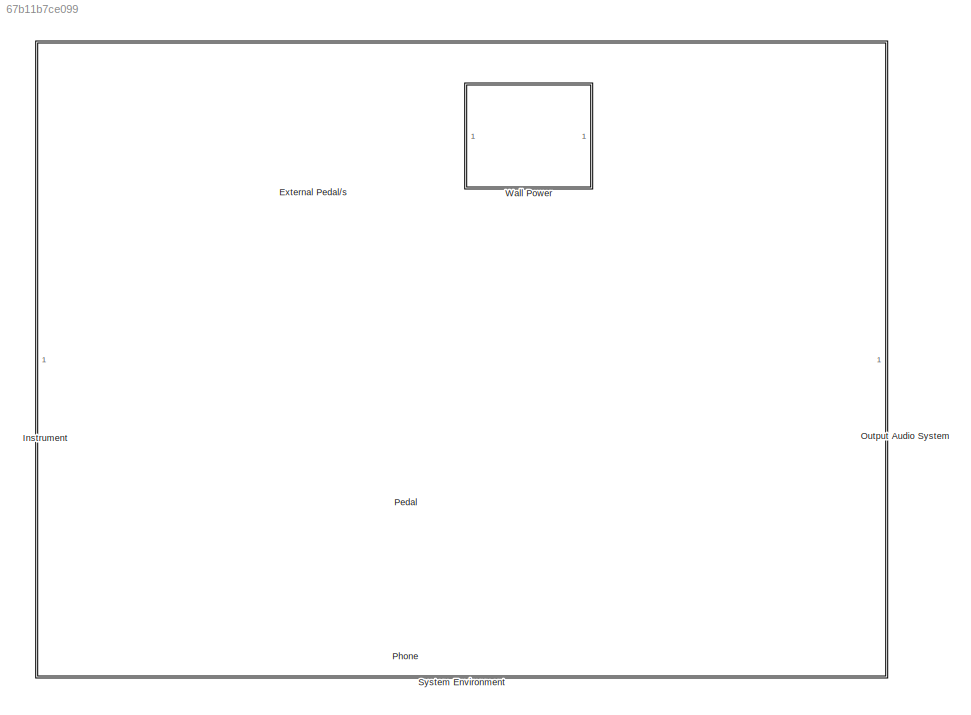
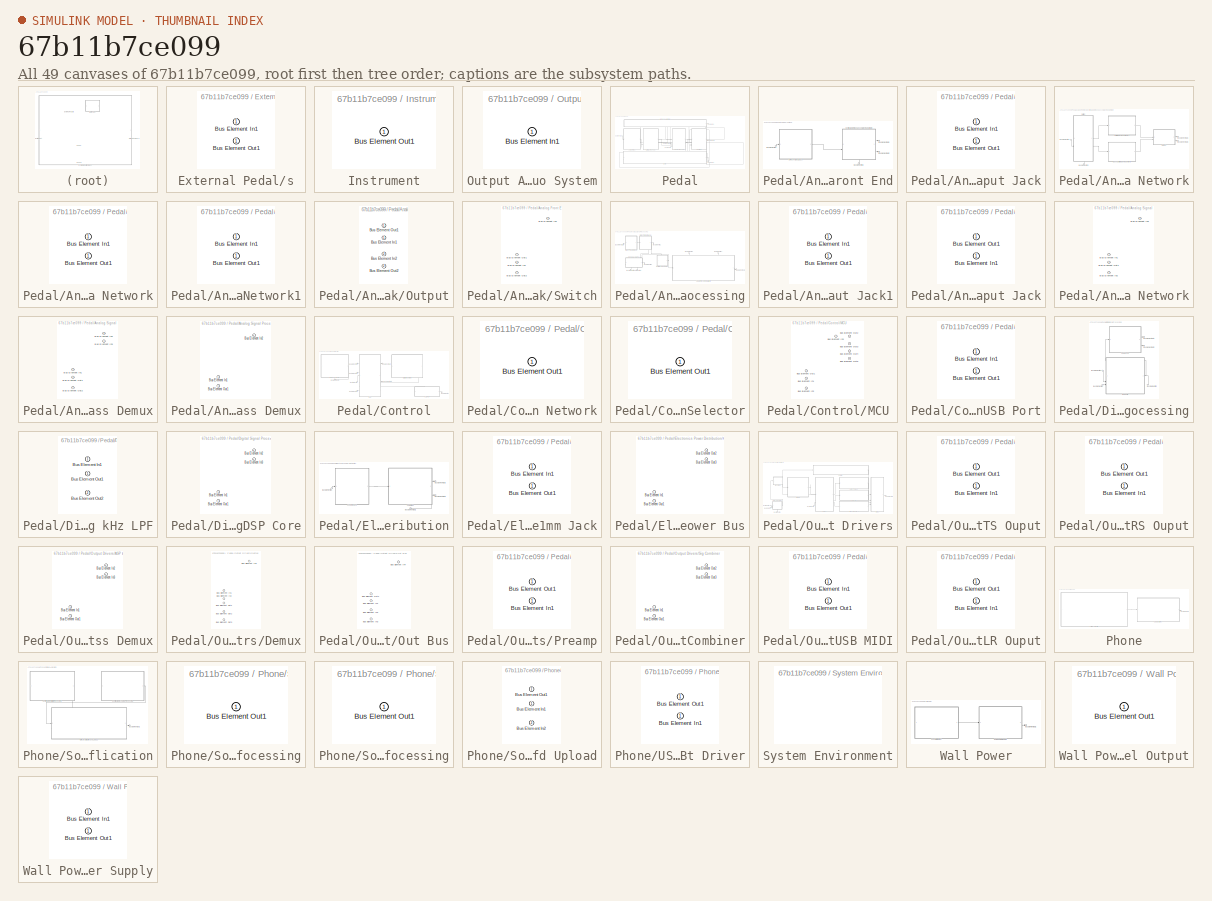
[diagram: thumbnail index - all 49 canvases of the model, root first then tree order]
MODEL slx_67b11b7ce099
KIND model
CONFIG AbsTol = auto
CONFIG EnableMultiTasking = off
CONFIG FixedStep = auto
CONFIG MaxStep = auto
CONFIG MinStep = auto
CONFIG RelTol = 1e-3
CONFIG SampleTimeConstraint = Unconstrained
CONFIG SolverName = VariableStepAuto
CONFIG StartTime = 0.0
CONFIG StopTime = 10.0
BLOCK [SubSystem] External Pedal//s
  PortSchema = {"entries":[{"content":{"headerSize":26,"margin":15,"minimumSpacing":25,"sides":[{"content":{"connectorIds":["Out1"]},"type":"ConnectorPlacement.EquallySpacedRectSide","uuid":"d45e420a-c48a-4f64-96ce-c5c35bb4ca1a"},{"content":{"connectorIds":["In1"],"side":"RIGHT"},"type":"ConnectorPlacement.EquallySpacedRectSide","uuid":"a4e2bce0-d957-4e8d-907b-26e945724fec"},{"content":{"side":"TOP"},"type":"Con...<+396ch>
BLOCK [Inport] External Pedal//s/Bus Element In1
BLOCK [Outport] External Pedal//s/Bus Element Out1
BLOCK [SubSystem] Instrument
  PortSchema = {"entries":[{"content":{"headerSize":26,"margin":15,"minimumSpacing":25,"sides":[{"content":{},"type":"ConnectorPlacement.EquallySpacedRectSide","uuid":"d45e420a-c48a-4f64-96ce-c5c35bb4ca1a"},{"content":{"connectorIds":["Out1"],"side":"RIGHT"},"type":"ConnectorPlacement.EquallySpacedRectSide","uuid":"a4e2bce0-d957-4e8d-907b-26e945724fec"},{"content":{"side":"TOP"},"type":"ConnectorPlacement.Equall...<+248ch>  <repeated x5 — deduplicated; at blocks: Instrument, Phone, Software Application, Configurable Analog Processing, 120V Wall Output>
BLOCK [Outport] Instrument/Bus Element Out1
BLOCK [SubSystem] Output Audio System
  PortSchema = {"entries":[{"content":{"headerSize":26,"margin":15,"minimumSpacing":25,"sides":[{"content":{"connectorIds":["In1"]},"type":"ConnectorPlacement.EquallySpacedRectSide","uuid":"d45e420a-c48a-4f64-96ce-c5c35bb4ca1a"},{"content":{"side":"RIGHT"},"type":"ConnectorPlacement.EquallySpacedRectSide","uuid":"a4e2bce0-d957-4e8d-907b-26e945724fec"},{"content":{"side":"TOP"},"type":"ConnectorPlacement.EquallyS...<+246ch>
BLOCK [Inport] Output Audio System/Bus Element In1
BLOCK [SubSystem] Pedal
  PortSchema = {"entries":[{"content":{"headerSize":26,"margin":15,"minimumSpacing":25,"sides":[{"content":{"connectorIds":["In3","Out2","In4"]},"type":"ConnectorPlacement.EquallySpacedRectSide","uuid":"d45e420a-c48a-4f64-96ce-c5c35bb4ca1a"},{"content":{"connectorIds":["In1","Out1","In2"],"side":"RIGHT"},"type":"ConnectorPlacement.EquallySpacedRectSide","uuid":"a4e2bce0-d957-4e8d-907b-26e945724fec"},{"content":{...<+295ch>
BLOCK [SubSystem] Pedal/Analog Front End
  PortSchema = {"entries":[{"content":{"headerSize":26,"margin":15,"minimumSpacing":25,"sides":[{"content":{"connectorIds":["In1","In2"]},"type":"ConnectorPlacement.EquallySpacedRectSide","uuid":"d45e420a-c48a-4f64-96ce-c5c35bb4ca1a"},{"content":{"connectorIds":["Out1","Out2"],"side":"RIGHT"},"type":"ConnectorPlacement.EquallySpacedRectSide","uuid":"a4e2bce0-d957-4e8d-907b-26e945724fec"},{"content":{"side":"TOP"...<+283ch>
BLOCK [SubSystem] Pedal/Analog Front End/1//4 Inch TS Input Jack
  PortSchema = {"entries":[{"content":{"headerSize":26,"margin":15,"minimumSpacing":25,"sides":[{"content":{"connectorIds":["In1"]},"type":"ConnectorPlacement.EquallySpacedRectSide","uuid":"d45e420a-c48a-4f64-96ce-c5c35bb4ca1a"},{"content":{"connectorIds":["Out1"],"side":"RIGHT"},"type":"ConnectorPlacement.EquallySpacedRectSide","uuid":"a4e2bce0-d957-4e8d-907b-26e945724fec"},{"content":{"side":"TOP"},"type":"Con...<+270ch>  <repeated x11 — deduplicated; at blocks: 1/4 Inch TS Input Jack, Bass Guitar Matching Network, Guitar Matching Network1, 9V 2.1mm Jack, 1/4 Inch TS Ouput, 1/8 Inch TRS Ouput, Preamp, USB MIDI, XLR Ouput, USB Output Driver, 9V DC Power Supply>
BLOCK [Inport] Pedal/Analog Front End/1//4 Inch TS Input Jack/Bus Element In1
BLOCK [Outport] Pedal/Analog Front End/1//4 Inch TS Input Jack/Bus Element Out1
BLOCK [Inport] Pedal/Analog Front End/Bus Element In1
BLOCK [Inport] Pedal/Analog Front End/Bus Element In2
  Port = 2
BLOCK [Outport] Pedal/Analog Front End/Bus Element Out1
BLOCK [Outport] Pedal/Analog Front End/Bus Element Out2
  Port = 2
BLOCK [SubSystem] Pedal/Analog Front End/Configurable Impedance Matching Network
  PortSchema = {"entries":[{"content":{"headerSize":26,"margin":15,"minimumSpacing":25,"sides":[{"content":{"connectorIds":["In2"]},"type":"ConnectorPlacement.EquallySpacedRectSide","uuid":"d45e420a-c48a-4f64-96ce-c5c35bb4ca1a"},{"content":{"connectorIds":["Out1","Out2"],"side":"RIGHT"},"type":"ConnectorPlacement.EquallySpacedRectSide","uuid":"a4e2bce0-d957-4e8d-907b-26e945724fec"},{"content":{"side":"TOP"},"typ...<+426ch>
BLOCK [SubSystem] Pedal/Analog Front End/Configurable Impedance Matching Network/Bass Guitar Matching Network
BLOCK [Inport] Pedal/Analog Front End/Configurable Impedance Matching Network/Bass Guitar Matching Network/Bus Element In1
BLOCK [Outport] Pedal/Analog Front End/Configurable Impedance Matching Network/Bass Guitar Matching Network/Bus Element Out1
BLOCK [Inport] Pedal/Analog Front End/Configurable Impedance Matching Network/Bus Element In1
  Port = 2
BLOCK [Inport] Pedal/Analog Front End/Configurable Impedance Matching Network/Bus Element In2
BLOCK [Outport] Pedal/Analog Front End/Configurable Impedance Matching Network/Bus Element Out1
BLOCK [Outport] Pedal/Analog Front End/Configurable Impedance Matching Network/Bus Element Out2
  Port = 2
BLOCK [SubSystem] Pedal/Analog Front End/Configurable Impedance Matching Network/Guitar Matching Network1
BLOCK [Inport] Pedal/Analog Front End/Configurable Impedance Matching Network/Guitar Matching Network1/Bus Element In1
BLOCK [Outport] Pedal/Analog Front End/Configurable Impedance Matching Network/Guitar Matching Network1/Bus Element Out1
BLOCK [SubSystem] Pedal/Analog Front End/Configurable Impedance Matching Network/Output
  PortSchema = {"entries":[{"content":{"headerSize":26,"margin":15,"minimumSpacing":25,"sides":[{"content":{"connectorIds":["In1","In2"]},"type":"ConnectorPlacement.EquallySpacedRectSide","uuid":"d45e420a-c48a-4f64-96ce-c5c35bb4ca1a"},{"content":{"connectorIds":["Out1","Out2"],"side":"RIGHT"},"type":"ConnectorPlacement.EquallySpacedRectSide","uuid":"a4e2bce0-d957-4e8d-907b-26e945724fec"},{"content":{"side":"TOP"...<+283ch>
BLOCK [Inport] Pedal/Analog Front End/Configurable Impedance Matching Network/Output/Bus Element In1
BLOCK [Inport] Pedal/Analog Front End/Configurable Impedance Matching Network/Output/Bus Element In2
  Port = 2
BLOCK [Outport] Pedal/Analog Front End/Configurable Impedance Matching Network/Output/Bus Element Out1
BLOCK [Outport] Pedal/Analog Front End/Configurable Impedance Matching Network/Output/Bus Element Out2
  Port = 2
BLOCK [SubSystem] Pedal/Analog Front End/Configurable Impedance Matching Network/Switch
  PortSchema = {"entries":[{"content":{"headerSize":26,"margin":15,"minimumSpacing":25,"sides":[{"content":{"connectorIds":["In2"]},"type":"ConnectorPlacement.EquallySpacedRectSide","uuid":"d45e420a-c48a-4f64-96ce-c5c35bb4ca1a"},{"content":{"connectorIds":["Out1","Out2"],"side":"RIGHT"},"type":"ConnectorPlacement.EquallySpacedRectSide","uuid":"a4e2bce0-d957-4e8d-907b-26e945724fec"},{"content":{"side":"TOP"},"typ...<+426ch>
BLOCK [Inport] Pedal/Analog Front End/Configurable Impedance Matching Network/Switch/Bus Element In1
  Port = 2
BLOCK [Inport] Pedal/Analog Front End/Configurable Impedance Matching Network/Switch/Bus Element In2
BLOCK [Outport] Pedal/Analog Front End/Configurable Impedance Matching Network/Switch/Bus Element Out1
BLOCK [Outport] Pedal/Analog Front End/Configurable Impedance Matching Network/Switch/Bus Element Out2
  Port = 2
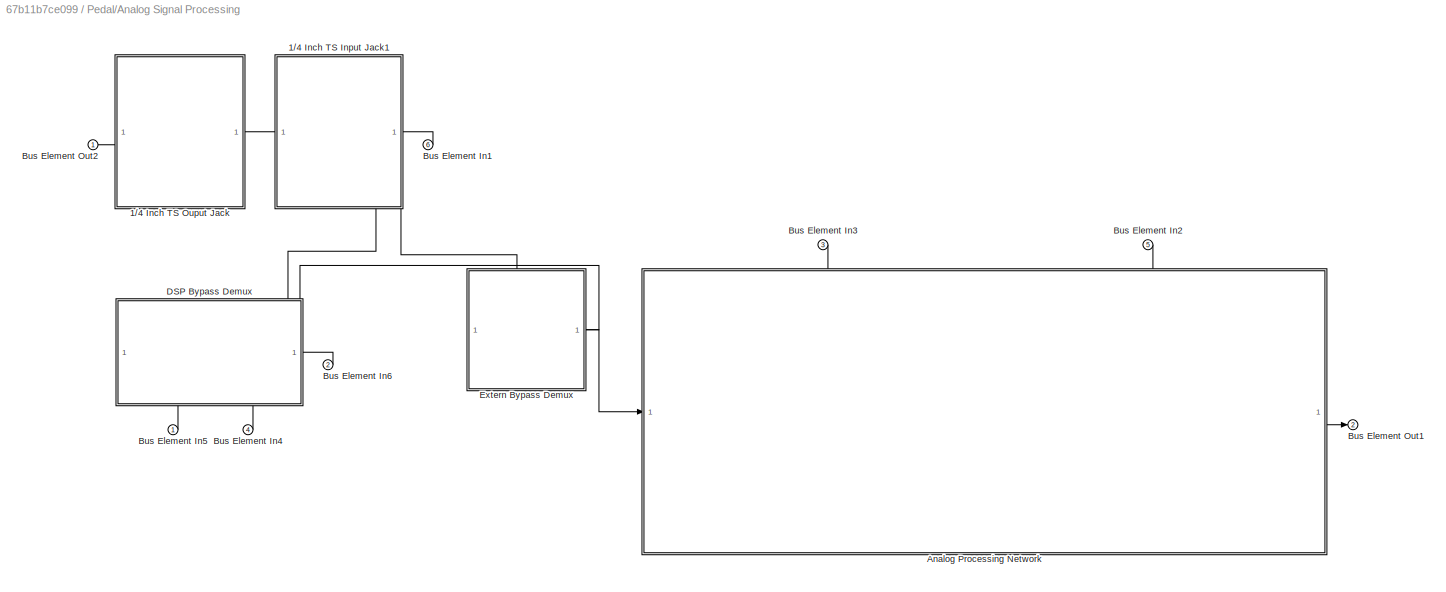
BLOCK [SubSystem] Pedal/Analog Signal Processing
  PortSchema = {"entries":[{"content":{"headerSize":26,"margin":15,"minimumSpacing":25,"sides":[{"content":{"connectorIds":["In1","In3","In4","Out1","In6"]},"type":"ConnectorPlacement.EquallySpacedRectSide","uuid":"d45e420a-c48a-4f64-96ce-c5c35bb4ca1a"},{"content":{"connectorIds":["Out2","In5","In2"],"side":"RIGHT"},"type":"ConnectorPlacement.EquallySpacedRectSide","uuid":"a4e2bce0-d957-4e8d-907b-26e945724fec"},...<+307ch>
BLOCK [SubSystem] Pedal/Analog Signal Processing/1//4 Inch TS Input Jack1
  PortSchema = {"entries":[{"content":{"headerSize":26,"margin":15,"minimumSpacing":25,"sides":[{"content":{},"type":"ConnectorPlacement.EquallySpacedRectSide","uuid":"d45e420a-c48a-4f64-96ce-c5c35bb4ca1a"},{"content":{"connectorIds":["In1"],"side":"RIGHT"},"type":"ConnectorPlacement.EquallySpacedRectSide","uuid":"a4e2bce0-d957-4e8d-907b-26e945724fec"},{"content":{"side":"TOP"},"type":"ConnectorPlacement.Equally...<+397ch>
BLOCK [Inport] Pedal/Analog Signal Processing/1//4 Inch TS Input Jack1/Bus Element In1
BLOCK [Outport] Pedal/Analog Signal Processing/1//4 Inch TS Input Jack1/Bus Element Out1
BLOCK [SubSystem] Pedal/Analog Signal Processing/1//4 Inch TS Ouput Jack
  PortSchema = {"entries":[{"content":{"headerSize":26,"margin":15,"minimumSpacing":25,"sides":[{"content":{"connectorIds":["Out1"]},"type":"ConnectorPlacement.EquallySpacedRectSide","uuid":"d45e420a-c48a-4f64-96ce-c5c35bb4ca1a"},{"content":{"side":"RIGHT"},"type":"ConnectorPlacement.EquallySpacedRectSide","uuid":"a4e2bce0-d957-4e8d-907b-26e945724fec"},{"content":{"side":"TOP"},"type":"ConnectorPlacement.Equally...<+396ch>
BLOCK [Inport] Pedal/Analog Signal Processing/1//4 Inch TS Ouput Jack/Bus Element In1
BLOCK [Outport] Pedal/Analog Signal Processing/1//4 Inch TS Ouput Jack/Bus Element Out1
BLOCK [SubSystem] Pedal/Analog Signal Processing/Analog Processing Network
  PortSchema = {"entries":[{"content":{"headerSize":26,"margin":15,"minimumSpacing":25,"sides":[{"content":{"connectorIds":["In1"]},"type":"ConnectorPlacement.EquallySpacedRectSide","uuid":"d45e420a-c48a-4f64-96ce-c5c35bb4ca1a"},{"content":{"connectorIds":["Out1"],"side":"RIGHT"},"type":"ConnectorPlacement.EquallySpacedRectSide","uuid":"a4e2bce0-d957-4e8d-907b-26e945724fec"},{"content":{"connectorIds":["In2","In...<+299ch>
BLOCK [Inport] Pedal/Analog Signal Processing/Analog Processing Network/Bus Element In1
  Port = 2
BLOCK [Inport] Pedal/Analog Signal Processing/Analog Processing Network/Bus Element In2
  Port = 3
BLOCK [Inport] Pedal/Analog Signal Processing/Analog Processing Network/Bus Element In3
BLOCK [Outport] Pedal/Analog Signal Processing/Analog Processing Network/Bus Element Out1
BLOCK [Inport] Pedal/Analog Signal Processing/Bus Element In1
  Port = 6
BLOCK [Inport] Pedal/Analog Signal Processing/Bus Element In2
  Port = 5
BLOCK [Inport] Pedal/Analog Signal Processing/Bus Element In3
  Port = 3
BLOCK [Inport] Pedal/Analog Signal Processing/Bus Element In4
  Port = 4
BLOCK [Inport] Pedal/Analog Signal Processing/Bus Element In5
BLOCK [Inport] Pedal/Analog Signal Processing/Bus Element In6
  Port = 2
BLOCK [Outport] Pedal/Analog Signal Processing/Bus Element Out1
  Port = 2
BLOCK [Outport] Pedal/Analog Signal Processing/Bus Element Out2
BLOCK [SubSystem] Pedal/Analog Signal Processing/DSP Bypass Demux
  PortSchema = {"entries":[{"content":{"headerSize":26,"margin":15,"minimumSpacing":25,"sides":[{"content":{"connectorIds":["Out1","Out2"]},"type":"ConnectorPlacement.EquallySpacedRectSide","uuid":"d45e420a-c48a-4f64-96ce-c5c35bb4ca1a"},{"content":{"connectorIds":["In1"],"side":"RIGHT"},"type":"ConnectorPlacement.EquallySpacedRectSide","uuid":"a4e2bce0-d957-4e8d-907b-26e945724fec"},{"content":{"side":"TOP"},"typ...<+432ch>
BLOCK [Inport] Pedal/Analog Signal Processing/DSP Bypass Demux/Bus Element In1
  Port = 3
BLOCK [Inport] Pedal/Analog Signal Processing/DSP Bypass Demux/Bus Element In2
  Port = 2
BLOCK [Inport] Pedal/Analog Signal Processing/DSP Bypass Demux/Bus Element In3
BLOCK [Outport] Pedal/Analog Signal Processing/DSP Bypass Demux/Bus Element Out1
BLOCK [Outport] Pedal/Analog Signal Processing/DSP Bypass Demux/Bus Element Out2
  Port = 2
BLOCK [SubSystem] Pedal/Analog Signal Processing/Extern Bypass Demux
  PortSchema = {"entries":[{"content":{"headerSize":26,"margin":15,"minimumSpacing":25,"sides":[{"content":{"connectorIds":["In1","In2"]},"type":"ConnectorPlacement.EquallySpacedRectSide","uuid":"d45e420a-c48a-4f64-96ce-c5c35bb4ca1a"},{"content":{"connectorIds":["Out1"],"side":"RIGHT"},"type":"ConnectorPlacement.EquallySpacedRectSide","uuid":"a4e2bce0-d957-4e8d-907b-26e945724fec"},{"content":{"side":"TOP"},"type...<+276ch>
BLOCK [Inport] Pedal/Analog Signal Processing/Extern Bypass Demux/Bus Element In1
  Port = 2
BLOCK [Inport] Pedal/Analog Signal Processing/Extern Bypass Demux/Bus Element In2
BLOCK [Outport] Pedal/Analog Signal Processing/Extern Bypass Demux/Bus Element Out1
BLOCK [Inport] Pedal/Bus Element In1
  Port = 4
BLOCK [Inport] Pedal/Bus Element In2
  Port = 3
BLOCK [Inport] Pedal/Bus Element In3
BLOCK [Inport] Pedal/Bus Element In4
  Port = 2
BLOCK [Outport] Pedal/Bus Element Out1
  Port = 2
BLOCK [Outport] Pedal/Bus Element Out2
BLOCK [SubSystem] Pedal/Control
  PortSchema = {"entries":[{"content":{"headerSize":26,"margin":15,"minimumSpacing":25,"sides":[{"content":{"connectorIds":["Out4","Out5"]},"type":"ConnectorPlacement.EquallySpacedRectSide","uuid":"d45e420a-c48a-4f64-96ce-c5c35bb4ca1a"},{"content":{"connectorIds":["Out1","Out2","Out3","Out6","In1"],"side":"RIGHT"},"type":"ConnectorPlacement.EquallySpacedRectSide","uuid":"a4e2bce0-d957-4e8d-907b-26e945724fec"},{"...<+328ch>
BLOCK [Inport] Pedal/Control/Bus Element In1
  Port = 2
BLOCK [Inport] Pedal/Control/Bus Element In2
BLOCK [Outport] Pedal/Control/Bus Element Out1
  Port = 6
BLOCK [Outport] Pedal/Control/Bus Element Out2
  Port = 4
BLOCK [Outport] Pedal/Control/Bus Element Out3
  Port = 5
BLOCK [Outport] Pedal/Control/Bus Element Out4
  Port = 3
BLOCK [Outport] Pedal/Control/Bus Element Out5
  Port = 2
BLOCK [Outport] Pedal/Control/Bus Element Out6
BLOCK [SubSystem] Pedal/Control/Dial//Switch Network
  PortSchema = {"entries":[{"content":{"headerSize":26,"margin":15,"minimumSpacing":25,"sides":[{"content":{"connectorIds":["Out1"]},"type":"ConnectorPlacement.EquallySpacedRectSide","uuid":"d45e420a-c48a-4f64-96ce-c5c35bb4ca1a"},{"content":{"side":"RIGHT"},"type":"ConnectorPlacement.EquallySpacedRectSide","uuid":"a4e2bce0-d957-4e8d-907b-26e945724fec"},{"content":{"side":"TOP"},"type":"ConnectorPlacement.Equally...<+247ch>
BLOCK [Outport] Pedal/Control/Dial//Switch Network/Bus Element Out1
BLOCK [SubSystem] Pedal/Control/Input Type Selector
  PortSchema = {"entries":[{"content":{"headerSize":26,"margin":15,"minimumSpacing":25,"sides":[{"content":{},"type":"ConnectorPlacement.EquallySpacedRectSide","uuid":"d45e420a-c48a-4f64-96ce-c5c35bb4ca1a"},{"content":{"side":"RIGHT"},"type":"ConnectorPlacement.EquallySpacedRectSide","uuid":"a4e2bce0-d957-4e8d-907b-26e945724fec"},{"content":{"side":"TOP"},"type":"ConnectorPlacement.EquallySpacedRectSide","uuid":...<+374ch>
BLOCK [Outport] Pedal/Control/Input Type Selector/Bus Element Out1
BLOCK [SubSystem] Pedal/Control/MCU
  PortSchema = {"entries":[{"content":{"headerSize":26,"margin":15,"minimumSpacing":25,"sides":[{"content":{"connectorIds":["Out2","Out3","In1","Out5"]},"type":"ConnectorPlacement.EquallySpacedRectSide","uuid":"d45e420a-c48a-4f64-96ce-c5c35bb4ca1a"},{"content":{"connectorIds":["Out1","In2","Out4","In3"],"side":"RIGHT"},"type":"ConnectorPlacement.EquallySpacedRectSide","uuid":"a4e2bce0-d957-4e8d-907b-26e945724fec...<+310ch>
BLOCK [Inport] Pedal/Control/MCU/Bus Element In1
  Port = 2
BLOCK [Inport] Pedal/Control/MCU/Bus Element In2
  Port = 3
BLOCK [Inport] Pedal/Control/MCU/Bus Element In3
BLOCK [Outport] Pedal/Control/MCU/Bus Element Out1
  Port = 5
BLOCK [Outport] Pedal/Control/MCU/Bus Element Out2
  Port = 4
BLOCK [Outport] Pedal/Control/MCU/Bus Element Out3
  Port = 3
BLOCK [Outport] Pedal/Control/MCU/Bus Element Out4
  Port = 2
BLOCK [Outport] Pedal/Control/MCU/Bus Element Out5
BLOCK [SubSystem] Pedal/Control/USB Port
  PortSchema = {"entries":[{"content":{"headerSize":26,"margin":15,"minimumSpacing":25,"sides":[{"content":{"connectorIds":["Out1"]},"type":"ConnectorPlacement.EquallySpacedRectSide","uuid":"d45e420a-c48a-4f64-96ce-c5c35bb4ca1a"},{"content":{"connectorIds":["In1"],"side":"RIGHT"},"type":"ConnectorPlacement.EquallySpacedRectSide","uuid":"a4e2bce0-d957-4e8d-907b-26e945724fec"},{"content":{"side":"TOP"},"type":"Con...<+270ch>
BLOCK [Inport] Pedal/Control/USB Port/Bus Element In1
BLOCK [Outport] Pedal/Control/USB Port/Bus Element Out1
BLOCK [SubSystem] Pedal/Digital Signal Processing
  PortSchema = {"entries":[{"content":{"headerSize":26,"margin":15,"minimumSpacing":25,"sides":[{"content":{"connectorIds":["In1","In3"]},"type":"ConnectorPlacement.EquallySpacedRectSide","uuid":"d45e420a-c48a-4f64-96ce-c5c35bb4ca1a"},{"content":{"connectorIds":["Out1","In2","Out2"],"side":"RIGHT"},"type":"ConnectorPlacement.EquallySpacedRectSide","uuid":"a4e2bce0-d957-4e8d-907b-26e945724fec"},{"content":{"side"...<+289ch>
BLOCK [SubSystem] Pedal/Digital Signal Processing/40 kHz LPF
  PortSchema = {"entries":[{"content":{"headerSize":26,"margin":15,"minimumSpacing":25,"sides":[{"content":{"connectorIds":["In1"]},"type":"ConnectorPlacement.EquallySpacedRectSide","uuid":"d45e420a-c48a-4f64-96ce-c5c35bb4ca1a"},{"content":{"connectorIds":["Out1","Out2"],"side":"RIGHT"},"type":"ConnectorPlacement.EquallySpacedRectSide","uuid":"a4e2bce0-d957-4e8d-907b-26e945724fec"},{"content":{"side":"TOP"},"typ...<+277ch>
BLOCK [Inport] Pedal/Digital Signal Processing/40 kHz LPF/Bus Element In1
BLOCK [Outport] Pedal/Digital Signal Processing/40 kHz LPF/Bus Element Out1
BLOCK [Outport] Pedal/Digital Signal Processing/40 kHz LPF/Bus Element Out2
  Port = 2
BLOCK [Inport] Pedal/Digital Signal Processing/Bus Element In1
  Port = 3
BLOCK [Inport] Pedal/Digital Signal Processing/Bus Element In2
  Port = 2
BLOCK [Inport] Pedal/Digital Signal Processing/Bus Element In3
BLOCK [Outport] Pedal/Digital Signal Processing/Bus Element Out1
BLOCK [Outport] Pedal/Digital Signal Processing/Bus Element Out2
  Port = 2
BLOCK [SubSystem] Pedal/Digital Signal Processing/DSP Core
  PortSchema = {"entries":[{"content":{"headerSize":26,"margin":15,"minimumSpacing":25,"sides":[{"content":{"connectorIds":["In2","In3"]},"type":"ConnectorPlacement.EquallySpacedRectSide","uuid":"d45e420a-c48a-4f64-96ce-c5c35bb4ca1a"},{"content":{"connectorIds":["Out1","In1"],"side":"RIGHT"},"type":"ConnectorPlacement.EquallySpacedRectSide","uuid":"a4e2bce0-d957-4e8d-907b-26e945724fec"},{"content":{"side":"TOP"}...<+282ch>
BLOCK [Inport] Pedal/Digital Signal Processing/DSP Core/Bus Element In1
  Port = 3
BLOCK [Inport] Pedal/Digital Signal Processing/DSP Core/Bus Element In2
  Port = 2
BLOCK [Inport] Pedal/Digital Signal Processing/DSP Core/Bus Element In3
BLOCK [Outport] Pedal/Digital Signal Processing/DSP Core/Bus Element Out1
BLOCK [SubSystem] Pedal/Electronics Power Distribution
  PortSchema = {"entries":[{"content":{"headerSize":26,"margin":15,"minimumSpacing":25,"sides":[{"content":{"connectorIds":["Out2"]},"type":"ConnectorPlacement.EquallySpacedRectSide","uuid":"d45e420a-c48a-4f64-96ce-c5c35bb4ca1a"},{"content":{"connectorIds":["In1","Out1"],"side":"RIGHT"},"type":"ConnectorPlacement.EquallySpacedRectSide","uuid":"a4e2bce0-d957-4e8d-907b-26e945724fec"},{"content":{"side":"TOP"},"typ...<+427ch>
BLOCK [SubSystem] Pedal/Electronics Power Distribution/9V 2.1mm Jack
BLOCK [Inport] Pedal/Electronics Power Distribution/9V 2.1mm Jack/Bus Element In1
BLOCK [Outport] Pedal/Electronics Power Distribution/9V 2.1mm Jack/Bus Element Out1
BLOCK [Inport] Pedal/Electronics Power Distribution/Bus Element In1
BLOCK [Outport] Pedal/Electronics Power Distribution/Bus Element Out1
  Port = 3
BLOCK [Outport] Pedal/Electronics Power Distribution/Bus Element Out2
  Port = 2
BLOCK [Outport] Pedal/Electronics Power Distribution/Bus Element Out3
BLOCK [SubSystem] Pedal/Electronics Power Distribution/Power Bus
  PortSchema = {"entries":[{"content":{"headerSize":26,"margin":15,"minimumSpacing":25,"sides":[{"content":{"connectorIds":["In1"]},"type":"ConnectorPlacement.EquallySpacedRectSide","uuid":"d45e420a-c48a-4f64-96ce-c5c35bb4ca1a"},{"content":{"connectorIds":["Out1","Out2"],"side":"RIGHT"},"type":"ConnectorPlacement.EquallySpacedRectSide","uuid":"a4e2bce0-d957-4e8d-907b-26e945724fec"},{"content":{"side":"TOP"},"typ...<+427ch>
BLOCK [Inport] Pedal/Electronics Power Distribution/Power Bus/Bus Element In1
BLOCK [Outport] Pedal/Electronics Power Distribution/Power Bus/Bus Element Out1
  Port = 3
BLOCK [Outport] Pedal/Electronics Power Distribution/Power Bus/Bus Element Out2
BLOCK [Outport] Pedal/Electronics Power Distribution/Power Bus/Bus Element Out3
  Port = 2
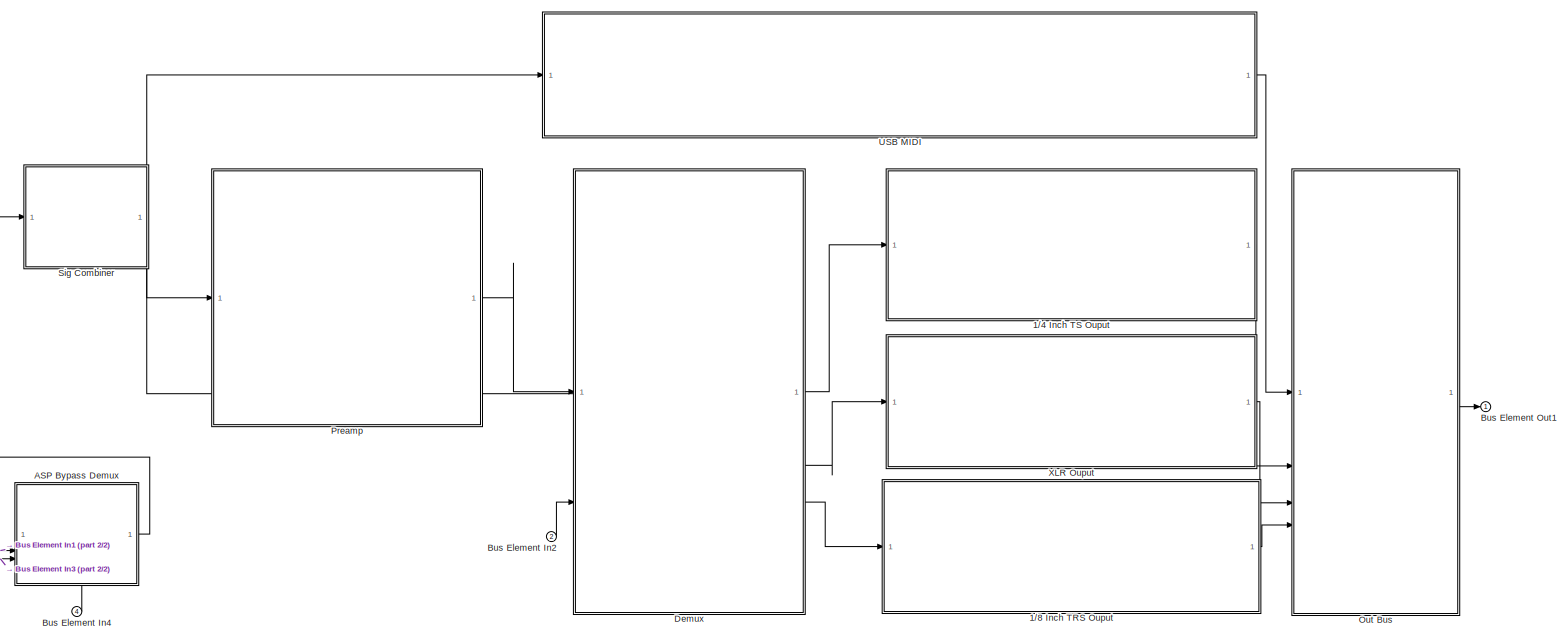
[diagram: Pedal/Output Drivers - part 1/2, most of the canvas]
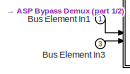
[diagram: Pedal/Output Drivers - part 2/2, bottom left region]
BLOCK [SubSystem] Pedal/Output Drivers
  PortSchema = {"entries":[{"content":{"headerSize":26,"margin":15,"minimumSpacing":25,"sides":[{"content":{"connectorIds":["In1","In2","In3","In4"]},"type":"ConnectorPlacement.EquallySpacedRectSide","uuid":"d45e420a-c48a-4f64-96ce-c5c35bb4ca1a"},{"content":{"connectorIds":["Out1"],"side":"RIGHT"},"type":"ConnectorPlacement.EquallySpacedRectSide","uuid":"a4e2bce0-d957-4e8d-907b-26e945724fec"},{"content":{"side":...<+288ch>
BLOCK [SubSystem] Pedal/Output Drivers/1//4 Inch TS Ouput
BLOCK [Inport] Pedal/Output Drivers/1//4 Inch TS Ouput/Bus Element In1
BLOCK [Outport] Pedal/Output Drivers/1//4 Inch TS Ouput/Bus Element Out1
BLOCK [SubSystem] Pedal/Output Drivers/1//8 Inch TRS Ouput
BLOCK [Inport] Pedal/Output Drivers/1//8 Inch TRS Ouput/Bus Element In1
BLOCK [Outport] Pedal/Output Drivers/1//8 Inch TRS Ouput/Bus Element Out1
BLOCK [SubSystem] Pedal/Output Drivers/ASP Bypass Demux
  PortSchema = {"entries":[{"content":{"headerSize":26,"margin":15,"minimumSpacing":25,"sides":[{"content":{"connectorIds":["In2","In3"]},"type":"ConnectorPlacement.EquallySpacedRectSide","uuid":"d45e420a-c48a-4f64-96ce-c5c35bb4ca1a"},{"content":{"connectorIds":["Out1"],"side":"RIGHT"},"type":"ConnectorPlacement.EquallySpacedRectSide","uuid":"a4e2bce0-d957-4e8d-907b-26e945724fec"},{"content":{"side":"TOP"},"type...<+425ch>
BLOCK [Inport] Pedal/Output Drivers/ASP Bypass Demux/Bus Element In1
  Port = 3
BLOCK [Inport] Pedal/Output Drivers/ASP Bypass Demux/Bus Element In2
  Port = 2
BLOCK [Inport] Pedal/Output Drivers/ASP Bypass Demux/Bus Element In3
BLOCK [Outport] Pedal/Output Drivers/ASP Bypass Demux/Bus Element Out1
BLOCK [Inport] Pedal/Output Drivers/Bus Element In1
BLOCK [Inport] Pedal/Output Drivers/Bus Element In2
  Port = 2
BLOCK [Inport] Pedal/Output Drivers/Bus Element In3
  Port = 3
BLOCK [Inport] Pedal/Output Drivers/Bus Element In4
  Port = 4
BLOCK [Outport] Pedal/Output Drivers/Bus Element Out1
BLOCK [SubSystem] Pedal/Output Drivers/Demux
  PortSchema = {"entries":[{"content":{"headerSize":26,"margin":15,"minimumSpacing":25,"sides":[{"content":{"connectorIds":["In1","In2","In3"]},"type":"ConnectorPlacement.EquallySpacedRectSide","uuid":"d45e420a-c48a-4f64-96ce-c5c35bb4ca1a"},{"content":{"connectorIds":["Out1","Out2","Out3"],"side":"RIGHT"},"type":"ConnectorPlacement.EquallySpacedRectSide","uuid":"a4e2bce0-d957-4e8d-907b-26e945724fec"},{"content":...<+296ch>
BLOCK [Inport] Pedal/Output Drivers/Demux/Bus Element In1
BLOCK [Inport] Pedal/Output Drivers/Demux/Bus Element In2
  Port = 3
BLOCK [Inport] Pedal/Output Drivers/Demux/Bus Element In3
  Port = 2
BLOCK [Outport] Pedal/Output Drivers/Demux/Bus Element Out1
BLOCK [Outport] Pedal/Output Drivers/Demux/Bus Element Out2
  Port = 2
BLOCK [Outport] Pedal/Output Drivers/Demux/Bus Element Out3
  Port = 3
BLOCK [SubSystem] Pedal/Output Drivers/Out Bus
  PortSchema = {"entries":[{"content":{"headerSize":26,"margin":15,"minimumSpacing":25,"sides":[{"content":{"connectorIds":["In1","In2","In3","In4"]},"type":"ConnectorPlacement.EquallySpacedRectSide","uuid":"d45e420a-c48a-4f64-96ce-c5c35bb4ca1a"},{"content":{"connectorIds":["Out1"],"side":"RIGHT"},"type":"ConnectorPlacement.EquallySpacedRectSide","uuid":"a4e2bce0-d957-4e8d-907b-26e945724fec"},{"content":{"side":...<+288ch>
BLOCK [Inport] Pedal/Output Drivers/Out Bus/Bus Element In1
  Port = 2
BLOCK [Inport] Pedal/Output Drivers/Out Bus/Bus Element In2
  Port = 3
BLOCK [Inport] Pedal/Output Drivers/Out Bus/Bus Element In3
  Port = 4
BLOCK [Inport] Pedal/Output Drivers/Out Bus/Bus Element In4
BLOCK [Outport] Pedal/Output Drivers/Out Bus/Bus Element Out1
BLOCK [SubSystem] Pedal/Output Drivers/Preamp
BLOCK [Inport] Pedal/Output Drivers/Preamp/Bus Element In1
BLOCK [Outport] Pedal/Output Drivers/Preamp/Bus Element Out1
BLOCK [SubSystem] Pedal/Output Drivers/Sig Combiner
  PortSchema = {"entries":[{"content":{"headerSize":26,"margin":15,"minimumSpacing":25,"sides":[{"content":{"connectorIds":["In1"]},"type":"ConnectorPlacement.EquallySpacedRectSide","uuid":"d45e420a-c48a-4f64-96ce-c5c35bb4ca1a"},{"content":{"side":"RIGHT"},"type":"ConnectorPlacement.EquallySpacedRectSide","uuid":"a4e2bce0-d957-4e8d-907b-26e945724fec"},{"content":{"connectorIds":["Out3"],"side":"TOP"},"type":"Con...<+427ch>
BLOCK [Inport] Pedal/Output Drivers/Sig Combiner/Bus Element In1
BLOCK [Outport] Pedal/Output Drivers/Sig Combiner/Bus Element Out1
  Port = 3
BLOCK [Outport] Pedal/Output Drivers/Sig Combiner/Bus Element Out2
  Port = 2
BLOCK [Outport] Pedal/Output Drivers/Sig Combiner/Bus Element Out3
BLOCK [SubSystem] Pedal/Output Drivers/USB MIDI
BLOCK [Inport] Pedal/Output Drivers/USB MIDI/Bus Element In1
BLOCK [Outport] Pedal/Output Drivers/USB MIDI/Bus Element Out1
BLOCK [SubSystem] Pedal/Output Drivers/XLR Ouput
BLOCK [Inport] Pedal/Output Drivers/XLR Ouput/Bus Element In1
BLOCK [Outport] Pedal/Output Drivers/XLR Ouput/Bus Element Out1
BLOCK [SubSystem] Phone
BLOCK [Outport] Phone/Bus Element Out1
BLOCK [SubSystem] Phone/Software Application
BLOCK [Outport] Phone/Software Application/Bus Element Out1
BLOCK [SubSystem] Phone/Software Application/Configurable Analog Processing
BLOCK [Outport] Phone/Software Application/Configurable Analog Processing/Bus Element Out1
BLOCK [SubSystem] Phone/Software Application/Configurable Digital Processing
  PortSchema = {"entries":[{"content":{"headerSize":26,"margin":15,"minimumSpacing":25,"sides":[{"content":{"connectorIds":["Out1"]},"type":"ConnectorPlacement.EquallySpacedRectSide","uuid":"d45e420a-c48a-4f64-96ce-c5c35bb4ca1a"},{"content":{"side":"RIGHT"},"type":"ConnectorPlacement.EquallySpacedRectSide","uuid":"a4e2bce0-d957-4e8d-907b-26e945724fec"},{"content":{"side":"TOP"},"type":"ConnectorPlacement.Equally...<+247ch>
BLOCK [Outport] Phone/Software Application/Configurable Digital Processing/Bus Element Out1
BLOCK [SubSystem] Phone/Software Application/Effects Validation and Upload
  PortSchema = {"entries":[{"content":{"headerSize":26,"margin":15,"minimumSpacing":25,"sides":[{"content":{"connectorIds":["In1","In2"]},"type":"ConnectorPlacement.EquallySpacedRectSide","uuid":"d45e420a-c48a-4f64-96ce-c5c35bb4ca1a"},{"content":{"connectorIds":["Out1"],"side":"RIGHT"},"type":"ConnectorPlacement.EquallySpacedRectSide","uuid":"a4e2bce0-d957-4e8d-907b-26e945724fec"},{"content":{"side":"TOP"},"type...<+276ch>
BLOCK [Inport] Phone/Software Application/Effects Validation and Upload/Bus Element In1
BLOCK [Inport] Phone/Software Application/Effects Validation and Upload/Bus Element In2
  Port = 2
BLOCK [Outport] Phone/Software Application/Effects Validation and Upload/Bus Element Out1
BLOCK [SubSystem] Phone/USB Output Driver
BLOCK [Inport] Phone/USB Output Driver/Bus Element In1
BLOCK [Outport] Phone/USB Output Driver/Bus Element Out1
BLOCK [SubSystem] System Environment
  PortSchema = {"entries":[{"content":{"headerSize":26,"margin":15,"minimumSpacing":25,"sides":[{"content":{},"type":"ConnectorPlacement.EquallySpacedRectSide","uuid":"ff6d08b7-25e5-4e55-8f49-6be1cf87a249"},{"content":{"side":"RIGHT"},"type":"ConnectorPlacement.EquallySpacedRectSide","uuid":"cf714437-3edf-4193-96f0-527040f4845b"},{"content":{"side":"TOP"},"type":"ConnectorPlacement.EquallySpacedRectSide","uuid":...<+224ch>
BLOCK [SubSystem] Wall Power
  PortSchema = {"entries":[{"content":{"headerSize":26,"margin":15,"minimumSpacing":25,"sides":[{"content":{},"type":"ConnectorPlacement.EquallySpacedRectSide","uuid":"d45e420a-c48a-4f64-96ce-c5c35bb4ca1a"},{"content":{"connectorIds":["Out1"],"side":"RIGHT"},"type":"ConnectorPlacement.EquallySpacedRectSide","uuid":"a4e2bce0-d957-4e8d-907b-26e945724fec"},{"content":{"side":"TOP"},"type":"ConnectorPlacement.Equall...<+374ch>
BLOCK [SubSystem] Wall Power/120V Wall Output
BLOCK [Outport] Wall Power/120V Wall Output/Bus Element Out1
BLOCK [SubSystem] Wall Power/9V DC Power Supply
BLOCK [Inport] Wall Power/9V DC Power Supply/Bus Element In1
BLOCK [Outport] Wall Power/9V DC Power Supply/Bus Element Out1
BLOCK [Outport] Wall Power/Bus Element Out1
LINE External Pedal//s:1 -> Pedal:3
LINE Instrument:1 -> Pedal:4
LINE Pedal/Analog Front End/1//4 Inch TS Input Jack:1 -> Pedal/Analog Front End/Configurable Impedance Matching Network:2
LINE Pedal/Analog Front End/Bus Element In1:1 -> Pedal/Analog Front End/1//4 Inch TS Input Jack:1
LINE Pedal/Analog Front End/Bus Element In2:1 -> Pedal/Analog Front End/Configurable Impedance Matching Network:1
LINE Pedal/Analog Front End/Configurable Impedance Matching Network/Bass Guitar Matching Network:1 -> Pedal/Analog Front End/Configurable Impedance Matching Network/Output:2
LINE Pedal/Analog Front End/Configurable Impedance Matching Network/Bus Element In1:1 -> Pedal/Analog Front End/Configurable Impedance Matching Network/Switch:2
LINE Pedal/Analog Front End/Configurable Impedance Matching Network/Bus Element In2:1 -> Pedal/Analog Front End/Configurable Impedance Matching Network/Switch:1
LINE Pedal/Analog Front End/Configurable Impedance Matching Network/Guitar Matching Network1:1 -> Pedal/Analog Front End/Configurable Impedance Matching Network/Output:1
LINE Pedal/Analog Front End/Configurable Impedance Matching Network/Output:1 -> Pedal/Analog Front End/Configurable Impedance Matching Network/Bus Element Out1:1
LINE Pedal/Analog Front End/Configurable Impedance Matching Network/Output:2 -> Pedal/Analog Front End/Configurable Impedance Matching Network/Bus Element Out2:1
LINE Pedal/Analog Front End/Configurable Impedance Matching Network/Switch:1 -> Pedal/Analog Front End/Configurable Impedance Matching Network/Guitar Matching Network1:1
LINE Pedal/Analog Front End/Configurable Impedance Matching Network/Switch:2 -> Pedal/Analog Front End/Configurable Impedance Matching Network/Bass Guitar Matching Network:1
LINE Pedal/Analog Front End/Configurable Impedance Matching Network:1 -> Pedal/Analog Front End/Bus Element Out1:1
LINE Pedal/Analog Front End/Configurable Impedance Matching Network:2 -> Pedal/Analog Front End/Bus Element Out2:1
LINE Pedal/Analog Front End:1 -> Pedal/Digital Signal Processing:3
LINE Pedal/Analog Front End:2 -> Pedal/Analog Signal Processing:1
LINE Pedal/Analog Signal Processing/1//4 Inch TS Input Jack1:1 -> Pedal/Analog Signal Processing/Extern Bypass Demux:2
LINE Pedal/Analog Signal Processing/1//4 Inch TS Ouput Jack:1 -> Pedal/Analog Signal Processing/Bus Element Out2:1
LINE Pedal/Analog Signal Processing/Analog Processing Network:1 -> Pedal/Analog Signal Processing/Bus Element Out1:1
LINE Pedal/Analog Signal Processing/Bus Element In1:1 -> Pedal/Analog Signal Processing/1//4 Inch TS Input Jack1:1
LINE Pedal/Analog Signal Processing/Bus Element In2:1 -> Pedal/Analog Signal Processing/Analog Processing Network:3
LINE Pedal/Analog Signal Processing/Bus Element In3:1 -> Pedal/Analog Signal Processing/Analog Processing Network:2
LINE Pedal/Analog Signal Processing/Bus Element In4:1 -> Pedal/Analog Signal Processing/DSP Bypass Demux:3
LINE Pedal/Analog Signal Processing/Bus Element In5:1 -> Pedal/Analog Signal Processing/DSP Bypass Demux:2
LINE Pedal/Analog Signal Processing/Bus Element In6:1 -> Pedal/Analog Signal Processing/DSP Bypass Demux:1
LINE Pedal/Analog Signal Processing/DSP Bypass Demux:1 -> Pedal/Analog Signal Processing/1//4 Inch TS Ouput Jack:1
LINE Pedal/Analog Signal Processing/DSP Bypass Demux:2 -> Pedal/Analog Signal Processing/Extern Bypass Demux:1
LINE Pedal/Analog Signal Processing/Extern Bypass Demux:1 -> Pedal/Analog Signal Processing/Analog Processing Network:1
LINE Pedal/Analog Signal Processing:1 -> Pedal/Bus Element Out1:1
LINE Pedal/Analog Signal Processing:2 -> Pedal/Output Drivers:1
LINE Pedal/Bus Element In1:1 -> Pedal/Analog Front End:1
LINE Pedal/Bus Element In2:1 -> Pedal/Analog Signal Processing:6
LINE Pedal/Bus Element In3:1 -> Pedal/Electronics Power Distribution:1
LINE Pedal/Bus Element In4:1 -> Pedal/Control:1
LINE Pedal/Control/Bus Element In1:1 -> Pedal/Control/MCU:1
LINE Pedal/Control/Bus Element In2:1 -> Pedal/Control/USB Port:1
LINE Pedal/Control/Dial//Switch Network:1 -> Pedal/Control/MCU:2
LINE Pedal/Control/Input Type Selector:1 -> Pedal/Control/Bus Element Out3:1
LINE Pedal/Control/MCU:1 -> Pedal/Control/Bus Element Out6:1
LINE Pedal/Control/MCU:2 -> Pedal/Control/Bus Element Out4:1
LINE Pedal/Control/MCU:3 -> Pedal/Control/Bus Element Out5:1
LINE Pedal/Control/MCU:4 -> Pedal/Control/Bus Element Out1:1
LINE Pedal/Control/MCU:5 -> Pedal/Control/Bus Element Out2:1
LINE Pedal/Control/USB Port:1 -> Pedal/Control/MCU:3
LINE Pedal/Control:1 -> Pedal/Output Drivers:4
LINE Pedal/Control:2 -> Pedal/Analog Signal Processing:2
LINE Pedal/Control:3 -> Pedal/Output Drivers:2
LINE Pedal/Control:4 -> Pedal/Digital Signal Processing:2
LINE Pedal/Control:5 -> Pedal/Analog Front End:2
LINE Pedal/Control:6 -> Pedal/Analog Signal Processing:5
LINE Pedal/Digital Signal Processing/40 kHz LPF:1 -> Pedal/Digital Signal Processing/Bus Element Out1:1
LINE Pedal/Digital Signal Processing/40 kHz LPF:2 -> Pedal/Digital Signal Processing/Bus Element Out2:1
LINE Pedal/Digital Signal Processing/Bus Element In1:1 -> Pedal/Digital Signal Processing/DSP Core:3
LINE Pedal/Digital Signal Processing/Bus Element In2:1 -> Pedal/Digital Signal Processing/DSP Core:1
LINE Pedal/Digital Signal Processing/Bus Element In3:1 -> Pedal/Digital Signal Processing/DSP Core:2
LINE Pedal/Digital Signal Processing/DSP Core:1 -> Pedal/Digital Signal Processing/40 kHz LPF:1
LINE Pedal/Digital Signal Processing:1 -> Pedal/Analog Signal Processing:4
LINE Pedal/Digital Signal Processing:2 -> Pedal/Output Drivers:3
LINE Pedal/Electronics Power Distribution/9V 2.1mm Jack:1 -> Pedal/Electronics Power Distribution/Power Bus:1
LINE Pedal/Electronics Power Distribution/Bus Element In1:1 -> Pedal/Electronics Power Distribution/9V 2.1mm Jack:1
LINE Pedal/Electronics Power Distribution/Power Bus:1 -> Pedal/Electronics Power Distribution/Bus Element Out2:1
LINE Pedal/Electronics Power Distribution/Power Bus:2 -> Pedal/Electronics Power Distribution/Bus Element Out3:1
LINE Pedal/Electronics Power Distribution/Power Bus:3 -> Pedal/Electronics Power Distribution/Bus Element Out1:1
LINE Pedal/Electronics Power Distribution:1 -> Pedal/Analog Signal Processing:3
LINE Pedal/Electronics Power Distribution:2 -> Pedal/Digital Signal Processing:1
LINE Pedal/Electronics Power Distribution:3 -> Pedal/Control:2
LINE Pedal/Output Drivers/1//4 Inch TS Ouput:1 -> Pedal/Output Drivers/Out Bus:2
LINE Pedal/Output Drivers/1//8 Inch TRS Ouput:1 -> Pedal/Output Drivers/Out Bus:4
LINE Pedal/Output Drivers/ASP Bypass Demux:1 -> Pedal/Output Drivers/Sig Combiner:1
LINE Pedal/Output Drivers/Bus Element In1:1 -> Pedal/Output Drivers/ASP Bypass Demux:2
LINE Pedal/Output Drivers/Bus Element In2:1 -> Pedal/Output Drivers/Demux:3
LINE Pedal/Output Drivers/Bus Element In3:1 -> Pedal/Output Drivers/ASP Bypass Demux:3
LINE Pedal/Output Drivers/Bus Element In4:1 -> Pedal/Output Drivers/ASP Bypass Demux:1
LINE Pedal/Output Drivers/Demux:1 -> Pedal/Output Drivers/1//4 Inch TS Ouput:1
LINE Pedal/Output Drivers/Demux:2 -> Pedal/Output Drivers/XLR Ouput:1
LINE Pedal/Output Drivers/Demux:3 -> Pedal/Output Drivers/1//8 Inch TRS Ouput:1
LINE Pedal/Output Drivers/Out Bus:1 -> Pedal/Output Drivers/Bus Element Out1:1
LINE Pedal/Output Drivers/Preamp:1 -> Pedal/Output Drivers/Demux:1
LINE Pedal/Output Drivers/Sig Combiner:1 -> Pedal/Output Drivers/Demux:2
LINE Pedal/Output Drivers/Sig Combiner:2 -> Pedal/Output Drivers/Preamp:1
LINE Pedal/Output Drivers/Sig Combiner:3 -> Pedal/Output Drivers/USB MIDI:1
LINE Pedal/Output Drivers/USB MIDI:1 -> Pedal/Output Drivers/Out Bus:1
LINE Pedal/Output Drivers/XLR Ouput:1 -> Pedal/Output Drivers/Out Bus:3
LINE Pedal/Output Drivers:1 -> Pedal/Bus Element Out2:1
LINE Pedal:1 -> Output Audio System:1
LINE Pedal:2 -> External Pedal//s:1
LINE Phone/Software Application/Configurable Analog Processing:1 -> Phone/Software Application/Effects Validation and Upload:1
LINE Phone/Software Application/Configurable Digital Processing:1 -> Phone/Software Application/Effects Validation and Upload:2
LINE Phone/Software Application/Effects Validation and Upload:1 -> Phone/Software Application/Bus Element Out1:1
LINE Phone/Software Application:1 -> Phone/USB Output Driver:1
LINE Phone/USB Output Driver:1 -> Phone/Bus Element Out1:1
LINE Phone:1 -> Pedal:2
LINE Wall Power/120V Wall Output:1 -> Wall Power/9V DC Power Supply:1
LINE Wall Power/9V DC Power Supply:1 -> Wall Power/Bus Element Out1:1
LINE Wall Power:1 -> Pedal:1
